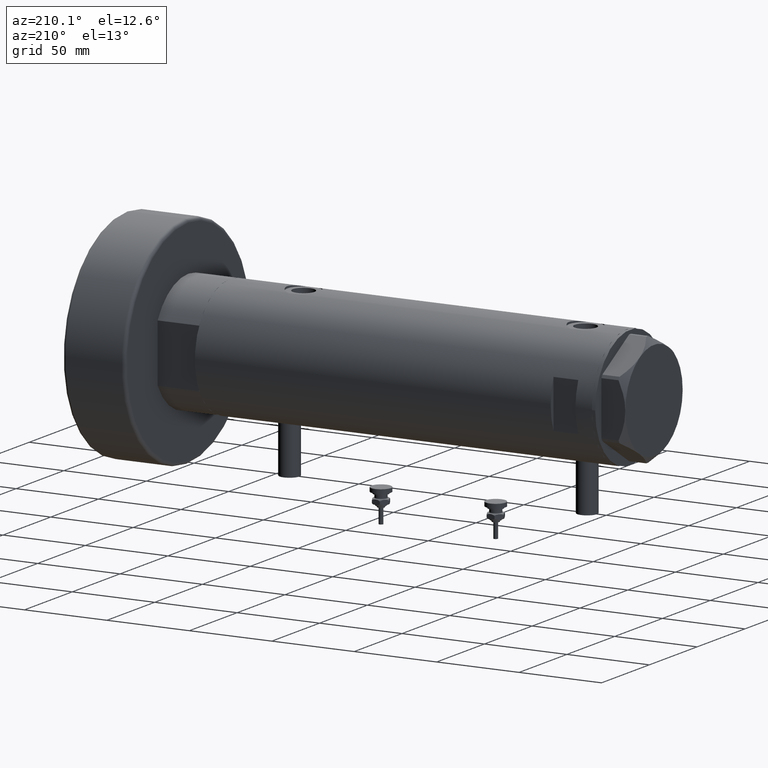
[diagram: clean part render]
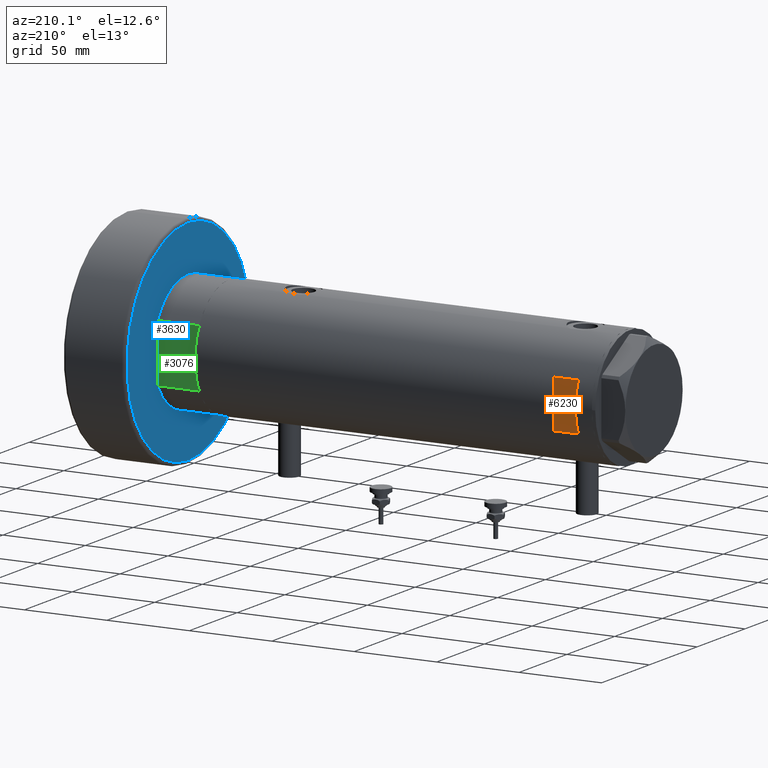
[diagram: same view with three faces highlighted in distinct colors, each labeled with its STEP entity id]
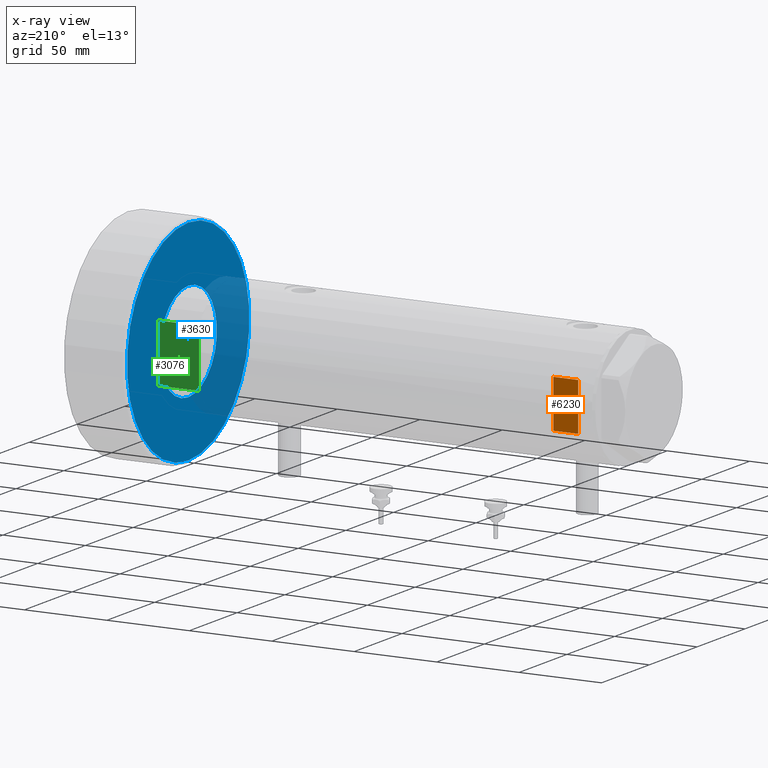
[diagram: x-ray of the same camera — body ghosted, the three highlighted faces saturated]
A machine part, auxiliary view with three faces highlighted in distinct colors.
The next image is the same camera in x-ray (body ghosted, the three faces saturated) — at least one of them is partly hidden behind the body in this view.
Their STEP definitions:

[orange] entity #6230 — the highlighted planar face has unit normal (0, -1, -0).
#11 = DIRECTION ( 'NONE',  ( -0.000000000000000000, -0.000000000000000000, -1.000000000000000000 ) ) ;
#56 = PLANE ( 'NONE',  #3956 ) ;
#459 = CARTESIAN_POINT ( 'NONE',  ( -14.49137674618942917, 33.50000000000000000, 95.40000000000000568 ) ) ;
#489 = LINE ( 'NONE', #3857, #3608 ) ;
#763 = EDGE_CURVE ( 'NONE', #5844, #4944, #3243, .T. ) ;
#1095 = CARTESIAN_POINT ( 'NONE',  ( -14.49137674618942739, 33.50000000000000000, 110.3999999999999915 ) ) ;
#1121 = ORIENTED_EDGE ( 'NONE', *, *, #2770, .T. ) ;
#1259 = EDGE_CURVE ( 'NONE', #1292, #6066, #5385, .T. ) ;
#1292 = VERTEX_POINT ( 'NONE', #459 ) ;
#1843 = DIRECTION ( 'NONE',  ( 0.000000000000000000, 0.000000000000000000, -1.000000000000000000 ) ) ;
#1970 = VECTOR ( 'NONE', #2752, 1000.000000000000000 ) ;
#2344 = EDGE_CURVE ( 'NONE', #4944, #6066, #489, .T. ) ;
#2379 = DIRECTION ( 'NONE',  ( 0.000000000000000000, 0.000000000000000000, 1.000000000000000000 ) ) ;
#2533 = EDGE_LOOP ( 'NONE', ( #6135, #5116, #1121, #6274 ) ) ;
#2568 = CARTESIAN_POINT ( 'NONE',  ( -36.50000000000000000, 33.50000000000000000, 110.3999999999999915 ) ) ;
#2674 = FACE_OUTER_BOUND ( 'NONE', #2533, .T. ) ;
#2752 = DIRECTION ( 'NONE',  ( 1.000000000000000000, -0.000000000000000000, -0.000000000000000000 ) ) ;
#2770 = EDGE_CURVE ( 'NONE', #1292, #5844, #5800, .T. ) ;
#2878 = CARTESIAN_POINT ( 'NONE',  ( -36.50000000000000000, 33.50000000000000000, 95.40000000000000568 ) ) ;
#2921 = DIRECTION ( 'NONE',  ( 0.000000000000000000, -1.000000000000000000, -0.000000000000000000 ) ) ;
#3243 = LINE ( 'NONE', #3271, #1970 ) ;
#3271 = CARTESIAN_POINT ( 'NONE',  ( -36.50000000000000000, 33.50000000000000000, 110.3999999999999915 ) ) ;
#3608 = VECTOR ( 'NONE', #11, 1000.000000000000000 ) ;
#3711 = VECTOR ( 'NONE', #2379, 1000.000000000000000 ) ;
#3857 = CARTESIAN_POINT ( 'NONE',  ( 14.49137674618942739, 33.50000000000000000, -120.4000000000000057 ) ) ;
#3956 = AXIS2_PLACEMENT_3D ( 'NONE', #2568, #2921, #1843 ) ;
#4025 = CARTESIAN_POINT ( 'NONE',  ( 14.49137674618942739, 33.50000000000000000, 110.3999999999999915 ) ) ;
#4341 = VECTOR ( 'NONE', #5937, 1000.000000000000000 ) ;
#4944 = VERTEX_POINT ( 'NONE', #4025 ) ;
#5038 = CARTESIAN_POINT ( 'NONE',  ( 14.49137674618942917, 33.50000000000000000, 95.40000000000000568 ) ) ;
#5116 = ORIENTED_EDGE ( 'NONE', *, *, #1259, .F. ) ;
#5385 = LINE ( 'NONE', #2878, #4341 ) ;
#5800 = LINE ( 'NONE', #5826, #3711 ) ;
#5826 = CARTESIAN_POINT ( 'NONE',  ( -14.49137674618942739, 33.50000000000000000, -120.4000000000000057 ) ) ;
#5844 = VERTEX_POINT ( 'NONE', #1095 ) ;
#5937 = DIRECTION ( 'NONE',  ( 1.000000000000000000, -0.000000000000000000, -0.000000000000000000 ) ) ;
#6066 = VERTEX_POINT ( 'NONE', #5038 ) ;
#6135 = ORIENTED_EDGE ( 'NONE', *, *, #2344, .T. ) ;
#6230 = ADVANCED_FACE ( 'NONE', ( #2674 ), #56, .F. ) ;
#6274 = ORIENTED_EDGE ( 'NONE', *, *, #763, .T. ) ;

[blue] entity #3630 — the highlighted planar face has unit normal (1, 0, -0).
#60 = EDGE_CURVE ( 'NONE', #3658, #551, #1237, .T. ) ;
#66 = CIRCLE ( 'NONE', #5477, 30.00000000000000000 ) ;
#398 = DIRECTION ( 'NONE',  ( -0.000000000000000000, -0.000000000000000000, -1.000000000000000000 ) ) ;
#551 = VERTEX_POINT ( 'NONE', #2735 ) ;
#622 = ORIENTED_EDGE ( 'NONE', *, *, #3741, .T. ) ;
#877 = ORIENTED_EDGE ( 'NONE', *, *, #4887, .T. ) ;
#959 = DIRECTION ( 'NONE',  ( 1.000000000000000000, 0.000000000000000000, 0.000000000000000000 ) ) ;
#1237 = CIRCLE ( 'NONE', #1651, 64.00000000000000000 ) ;
#1342 = FACE_BOUND ( 'NONE', #5514, .T. ) ;
#1523 = EDGE_LOOP ( 'NONE', ( #622, #5293 ) ) ;
#1644 = CARTESIAN_POINT ( 'NONE',  ( 0.000000000000000000, 0.000000000000000000, 0.000000000000000000 ) ) ;
#1651 = AXIS2_PLACEMENT_3D ( 'NONE', #6227, #398, #2254 ) ;
#1774 = CARTESIAN_POINT ( 'NONE',  ( 0.000000000000000000, 0.000000000000000000, 0.000000000000000000 ) ) ;
#1904 = CARTESIAN_POINT ( 'NONE',  ( 0.000000000000000000, 0.000000000000000000, 0.000000000000000000 ) ) ;
#1957 = CARTESIAN_POINT ( 'NONE',  ( 30.00000000000000000, 0.000000000000000000, 0.000000000000000000 ) ) ;
#2006 = DIRECTION ( 'NONE',  ( -0.000000000000000000, -0.000000000000000000, -1.000000000000000000 ) ) ;
#2225 = DIRECTION ( 'NONE',  ( 1.000000000000000000, 0.000000000000000000, -0.000000000000000000 ) ) ;
#2254 = DIRECTION ( 'NONE',  ( 1.000000000000000000, 0.000000000000000000, 0.000000000000000000 ) ) ;
#2397 = VERTEX_POINT ( 'NONE', #1957 ) ;
#2572 = DIRECTION ( 'NONE',  ( 0.000000000000000000, 0.000000000000000000, 1.000000000000000000 ) ) ;
#2735 = CARTESIAN_POINT ( 'NONE',  ( 64.00000000000000000, 0.000000000000000000, 0.000000000000000000 ) ) ;
#2791 = DIRECTION ( 'NONE',  ( 0.000000000000000000, 0.000000000000000000, 1.000000000000000000 ) ) ;
#3247 = FACE_OUTER_BOUND ( 'NONE', #1523, .T. ) ;
#3274 = CARTESIAN_POINT ( 'NONE',  ( -30.00000000000000000, 3.673940397442059178E-15, 0.000000000000000000 ) ) ;
#3278 = ORIENTED_EDGE ( 'NONE', *, *, #3730, .T. ) ;
#3630 = ADVANCED_FACE ( 'NONE', ( #3247, #1342 ), #5257, .F. ) ;
#3635 = VERTEX_POINT ( 'NONE', #3274 ) ;
#3658 = VERTEX_POINT ( 'NONE', #6223 ) ;
#3717 = CIRCLE ( 'NONE', #5981, 30.00000000000000000 ) ;
#3730 = EDGE_CURVE ( 'NONE', #3635, #2397, #3717, .T. ) ;
#3741 = EDGE_CURVE ( 'NONE', #551, #3658, #4736, .T. ) ;
#3923 = DIRECTION ( 'NONE',  ( 0.000000000000000000, 0.000000000000000000, 1.000000000000000000 ) ) ;
#4736 = CIRCLE ( 'NONE', #5561, 64.00000000000000000 ) ;
#4887 = EDGE_CURVE ( 'NONE', #2397, #3635, #66, .T. ) ;
#4975 = DIRECTION ( 'NONE',  ( 1.000000000000000000, 0.000000000000000000, 0.000000000000000000 ) ) ;
#5257 = PLANE ( 'NONE',  #5762 ) ;
#5293 = ORIENTED_EDGE ( 'NONE', *, *, #60, .T. ) ;
#5477 = AXIS2_PLACEMENT_3D ( 'NONE', #1644, #2572, #4975 ) ;
#5514 = EDGE_LOOP ( 'NONE', ( #877, #3278 ) ) ;
#5561 = AXIS2_PLACEMENT_3D ( 'NONE', #1904, #2006, #959 ) ;
#5762 = AXIS2_PLACEMENT_3D ( 'NONE', #1774, #2791, #2225 ) ;
#5814 = CARTESIAN_POINT ( 'NONE',  ( 0.000000000000000000, 0.000000000000000000, 0.000000000000000000 ) ) ;
#5981 = AXIS2_PLACEMENT_3D ( 'NONE', #5814, #3923, #6288 ) ;
#6223 = CARTESIAN_POINT ( 'NONE',  ( -64.00000000000000000, 7.960204194457797252E-15, 0.000000000000000000 ) ) ;
#6227 = CARTESIAN_POINT ( 'NONE',  ( 0.000000000000000000, 0.000000000000000000, 0.000000000000000000 ) ) ;
#6288 = DIRECTION ( 'NONE',  ( 1.000000000000000000, 0.000000000000000000, 0.000000000000000000 ) ) ;

[green] entity #3076 — the highlighted planar face has unit normal (0, -1, -0).
#2 = DIRECTION ( 'NONE',  ( -0.000000000000000000, -0.000000000000000000, 1.000000000000000000 ) ) ;
#289 = ORIENTED_EDGE ( 'NONE', *, *, #2127, .F. ) ;
#317 = ORIENTED_EDGE ( 'NONE', *, *, #6152, .F. ) ;
#345 = FACE_OUTER_BOUND ( 'NONE', #803, .T. ) ;
#517 = CARTESIAN_POINT ( 'NONE',  ( 0.000000000000000000, 32.00000000000000000, 0.000000000000000000 ) ) ;
#714 = CARTESIAN_POINT ( 'NONE',  ( 17.55704986607943496, 32.00000000000000000, 0.000000000000000000 ) ) ;
#741 = VERTEX_POINT ( 'NONE', #714 ) ;
#803 = EDGE_LOOP ( 'NONE', ( #1428, #289, #5683, #317, #2073 ) ) ;
#1055 = CARTESIAN_POINT ( 'NONE',  ( -17.55704986607943141, 32.00000000000000000, 0.000000000000000000 ) ) ;
#1428 = ORIENTED_EDGE ( 'NONE', *, *, #3449, .T. ) ;
#1571 = EDGE_CURVE ( 'NONE', #4133, #741, #2081, .T. ) ;
#1572 = VECTOR ( 'NONE', #2, 1000.000000000000000 ) ;
#1964 = VECTOR ( 'NONE', #5189, 1000.000000000000000 ) ;
#2073 = ORIENTED_EDGE ( 'NONE', *, *, #3374, .T. ) ;
#2081 = LINE ( 'NONE', #4045, #2345 ) ;
#2127 = EDGE_CURVE ( 'NONE', #741, #4985, #2307, .T. ) ;
#2307 = LINE ( 'NONE', #4661, #1964 ) ;
#2345 = VECTOR ( 'NONE', #5999, 1000.000000000000000 ) ;
#2480 = AXIS2_PLACEMENT_3D ( 'NONE', #4613, #4196, #3140 ) ;
#2518 = VECTOR ( 'NONE', #3531, 1000.000000000000000 ) ;
#2764 = VERTEX_POINT ( 'NONE', #3947 ) ;
#2903 = LINE ( 'NONE', #3454, #1572 ) ;
#3050 = DIRECTION ( 'NONE',  ( 1.000000000000000000, 0.000000000000000000, 0.000000000000000000 ) ) ;
#3076 = ADVANCED_FACE ( 'NONE', ( #345 ), #5080, .F. ) ;
#3140 = DIRECTION ( 'NONE',  ( 0.000000000000000000, -0.000000000000000000, -1.000000000000000000 ) ) ;
#3374 = EDGE_CURVE ( 'NONE', #4516, #2764, #2903, .T. ) ;
#3449 = EDGE_CURVE ( 'NONE', #2764, #4985, #3523, .T. ) ;
#3454 = CARTESIAN_POINT ( 'NONE',  ( -17.55704986607943141, 32.00000000000000000, 0.000000000000000000 ) ) ;
#3492 = LINE ( 'NONE', #1055, #2518 ) ;
#3523 = LINE ( 'NONE', #5479, #3629 ) ;
#3531 = DIRECTION ( 'NONE',  ( 1.000000000000000000, 0.000000000000000000, 0.000000000000000000 ) ) ;
#3629 = VECTOR ( 'NONE', #3050, 1000.000000000000000 ) ;
#3947 = CARTESIAN_POINT ( 'NONE',  ( -17.55704986607943496, 32.00000000000000000, 25.19999999999999929 ) ) ;
#4045 = CARTESIAN_POINT ( 'NONE',  ( -17.55704986607943141, 32.00000000000000000, 0.000000000000000000 ) ) ;
#4062 = CARTESIAN_POINT ( 'NONE',  ( 17.55704986607943496, 32.00000000000000000, 25.19999999999999929 ) ) ;
#4133 = VERTEX_POINT ( 'NONE', #517 ) ;
#4196 = DIRECTION ( 'NONE',  ( 0.000000000000000000, -1.000000000000000000, 0.000000000000000000 ) ) ;
#4516 = VERTEX_POINT ( 'NONE', #5215 ) ;
#4613 = CARTESIAN_POINT ( 'NONE',  ( -17.55704986607943141, 32.00000000000000000, 0.000000000000000000 ) ) ;
#4661 = CARTESIAN_POINT ( 'NONE',  ( 17.55704986607943141, 32.00000000000000000, 0.000000000000000000 ) ) ;
#4985 = VERTEX_POINT ( 'NONE', #4062 ) ;
#5080 = PLANE ( 'NONE',  #2480 ) ;
#5189 = DIRECTION ( 'NONE',  ( -0.000000000000000000, -0.000000000000000000, 1.000000000000000000 ) ) ;
#5215 = CARTESIAN_POINT ( 'NONE',  ( -17.55704986607943141, 32.00000000000000000, 0.000000000000000000 ) ) ;
#5479 = CARTESIAN_POINT ( 'NONE',  ( -17.55704986607943141, 32.00000000000000000, 25.19999999999999929 ) ) ;
#5683 = ORIENTED_EDGE ( 'NONE', *, *, #1571, .F. ) ;
#5999 = DIRECTION ( 'NONE',  ( 1.000000000000000000, 0.000000000000000000, 0.000000000000000000 ) ) ;
#6152 = EDGE_CURVE ( 'NONE', #4516, #4133, #3492, .T. ) ;